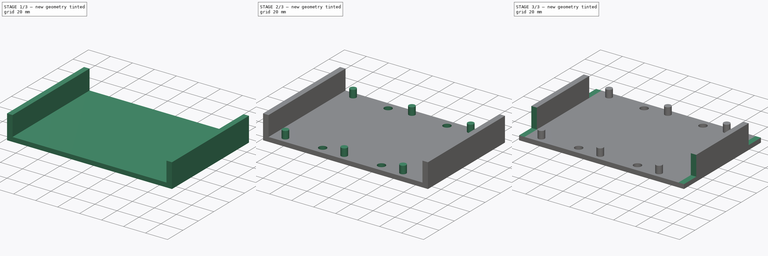
[diagram: build sequence overview — one tinted view per stage of 3, left to right]
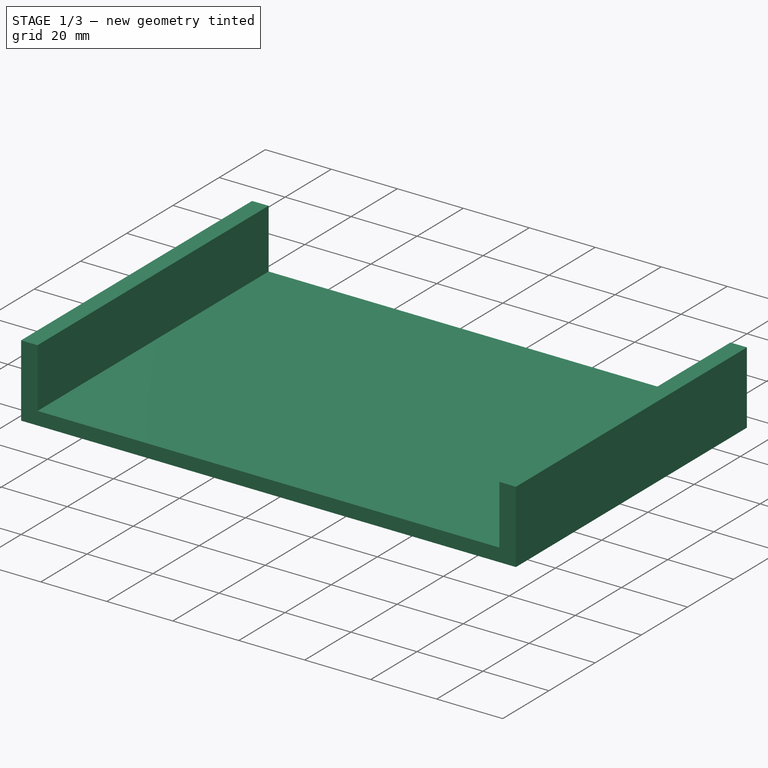
[diagram: stage 1 of 3 — iso view after this stage's code; geometry added in this stage tinted green]
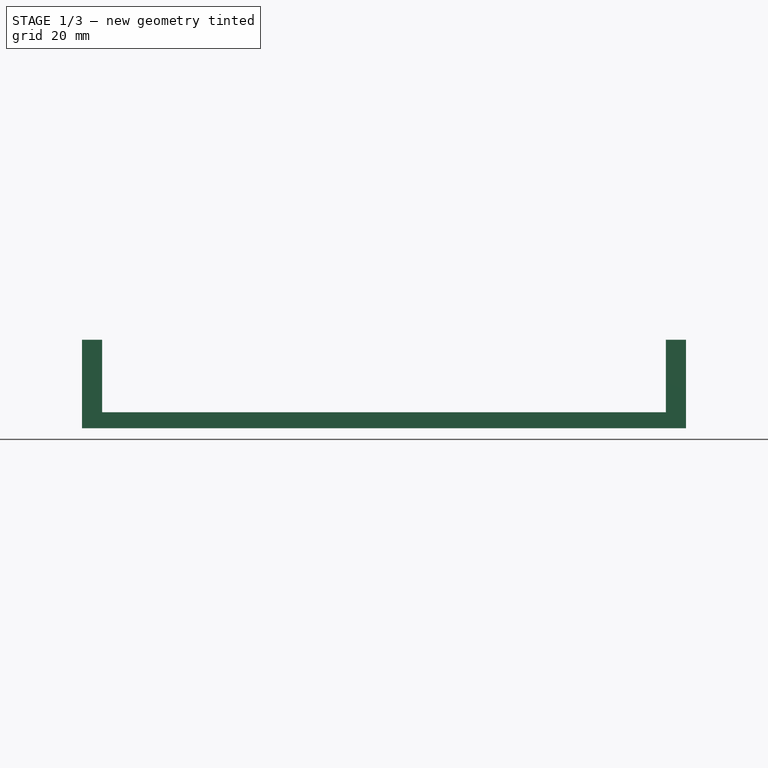
[diagram: stage 1 of 3 — front view after this stage's code; geometry added in this stage tinted green]
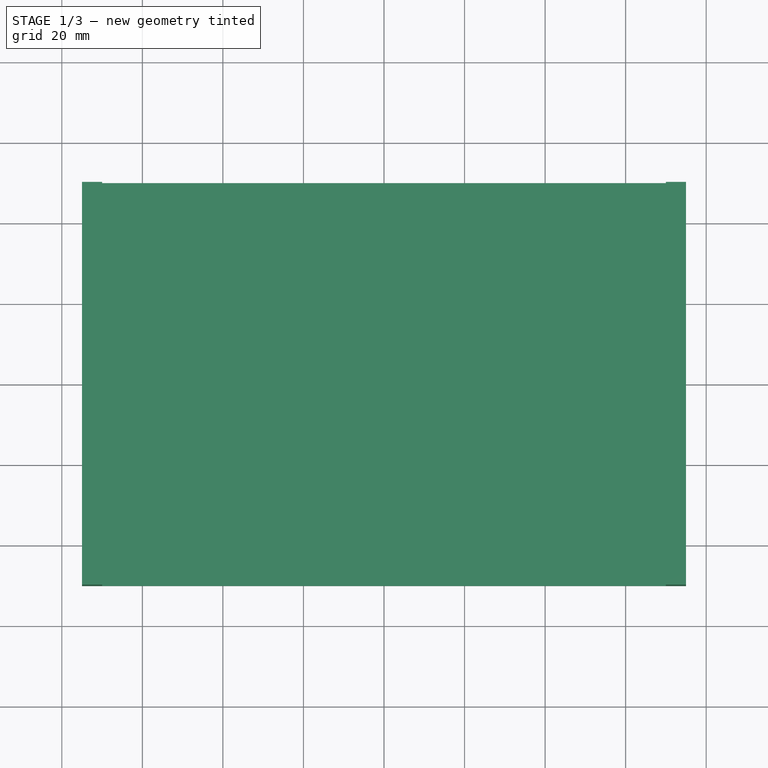
[diagram: stage 1 of 3 — top view after this stage's code; geometry added in this stage tinted green]
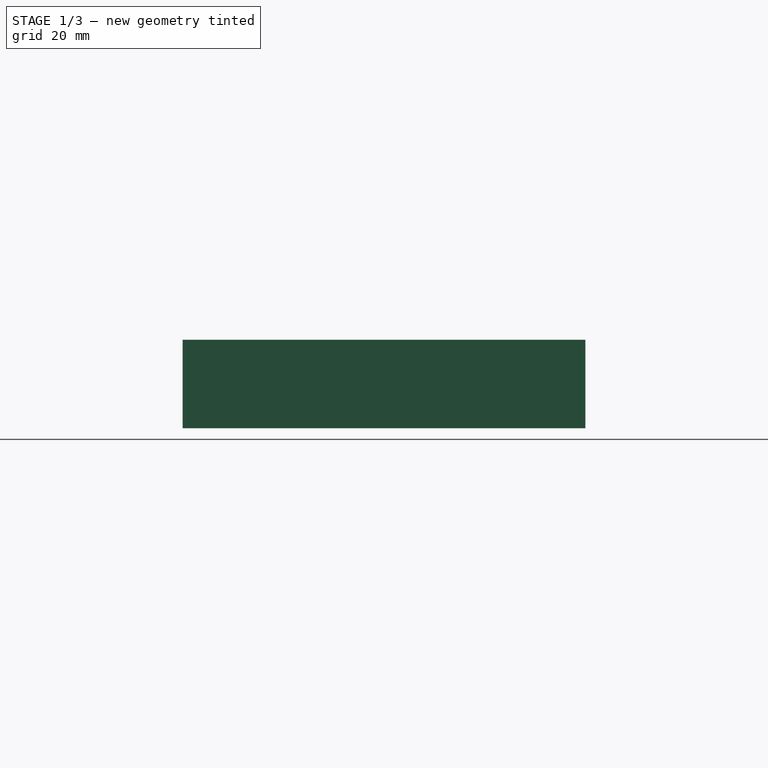
[diagram: stage 1 of 3 — right view after this stage's code; geometry added in this stage tinted green]
FCSTD DOCUMENT  (FreeCAD 0.21R33668 +26 (Git))
Label: abajo
License: All rights reserved
LicenseURL: https://en.wikipedia.org/wiki/All_rights_reserved
objects: Sketcher::SketchObject×6, PartDesign::Pad×3, PartDesign::Pocket×3, PartDesign::Body×1
note: 19 computed .brp shape members not serialized (recipe doc carries the construction recipe); baked Part::Feature solids carry a one-line shape summary decoded from their .brp

FEATURE [Sketcher::SketchObject] Sketch
  FullyConstrained = true
  MapMode = 5
  Support = -> [XY_Plane]
  sketch-geometry (4):
    g0: LineSegment StartX=-75 StartY=50 StartZ=0 EndX=75 EndY=50 EndZ=0
    g1: LineSegment StartX=75 StartY=50 StartZ=0 EndX=75 EndY=-50 EndZ=0
    g2: LineSegment StartX=75 StartY=-50 StartZ=0 EndX=-75 EndY=-50 EndZ=0
    g3: LineSegment StartX=-75 StartY=-50 StartZ=0 EndX=-75 EndY=50 EndZ=0
  constraints (12):
    c: Coincident(g0,g1)
    c: Coincident(g1,g2)
    c: Coincident(g2,g3)
    c: Coincident(g3,g0)
    c: Horizontal(g0)
    c: Horizontal(g2)
    c: Vertical(g1)
    c: Vertical(g3)
    c: DistanceY(g3,g3) = 100
    c: DistanceY(g-1,g0) = 50
    c: DistanceX(g0,g0) = 150
    c: DistanceX(g0,g-1) = 75
FEATURE [PartDesign::Pad] Pad
  Direction = (0,0,1)
  Length = 4
  Length2 = 10
  Profile = -> Sketch
  ReferenceAxis = -> Sketch [N_Axis]
  Type = 0
FEATURE [Sketcher::SketchObject] Sketch005
  ExternalGeometry = -> [Pad]
  FullyConstrained = true
  MapMode = 5
  Placement = pos=(0,0,4) rot=(0,0,1;0rad)
  sketch-geometry (8):
    g0: LineSegment StartX=-75 StartY=50 StartZ=0 EndX=-70 EndY=50 EndZ=0
    g1: LineSegment StartX=-70 StartY=50 StartZ=0 EndX=-70 EndY=-50 EndZ=0
    g2: LineSegment StartX=-70 StartY=-50 StartZ=0 EndX=-75 EndY=-50 EndZ=0
    g3: LineSegment StartX=-75 StartY=-50 StartZ=0 EndX=-75 EndY=50 EndZ=0
    g4: LineSegment StartX=75 StartY=50 StartZ=0 EndX=70 EndY=50 EndZ=0
    g5: LineSegment StartX=70 StartY=50 StartZ=0 EndX=70 EndY=-50 EndZ=0
    g6: LineSegment StartX=70 StartY=-50 StartZ=0 EndX=75 EndY=-50 EndZ=0
    g7: LineSegment StartX=75 StartY=-50 StartZ=0 EndX=75 EndY=50 EndZ=0
  constraints (22):
    c: Coincident(g0,g1)
    c: Coincident(g1,g2)
    c: Coincident(g2,g3)
    c: Coincident(g3,g0)
    c: Horizontal(g0)
    c: Horizontal(g2)
    c: Vertical(g1)
    c: Vertical(g3)
    c: Coincident(g0,g-4)
    c: PointOnObject(g1,g-5)
    c: Coincident(g4,g5)
    c: Coincident(g5,g6)
    c: Coincident(g6,g7)
    c: Coincident(g7,g4)
    c: Horizontal(g4)
    c: Horizontal(g6)
    c: Vertical(g5)
    c: Vertical(g7)
    c: Coincident(g4,g-6)
    c: PointOnObject(g5,g-5)
    c: DistanceX(g2,g2) = 5
    c: DistanceX(g6,g6) = 5
FEATURE [PartDesign::Pad] Pad001
  BaseFeature = -> Pad
  Direction = (0,0,1)
  Length = 18
  Length2 = 10
  Profile = -> Sketch005
  ReferenceAxis = -> Sketch005 [N_Axis]
  Type = 0
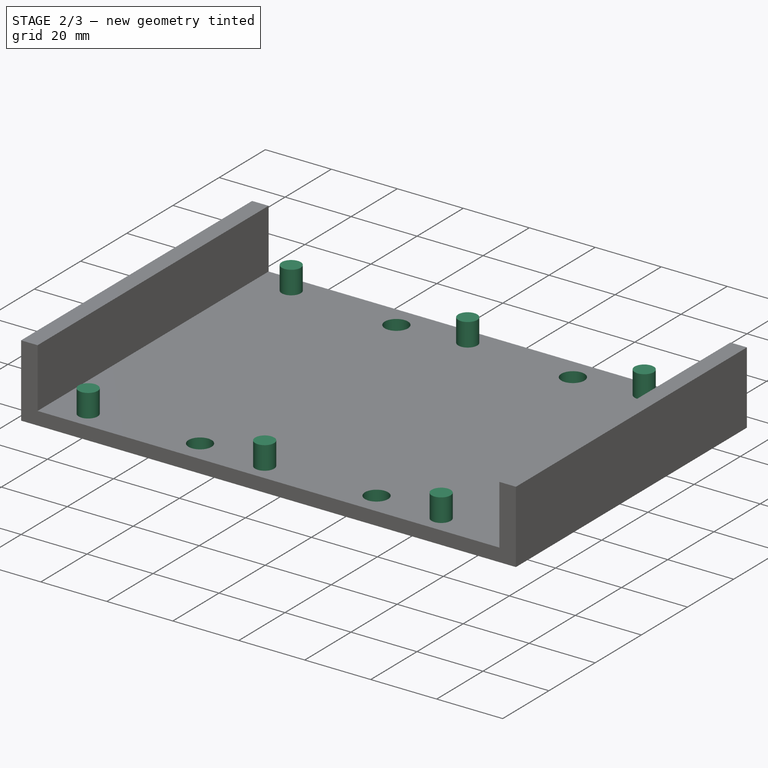
[diagram: stage 2 of 3 — iso view after this stage's code; geometry added in this stage tinted green]
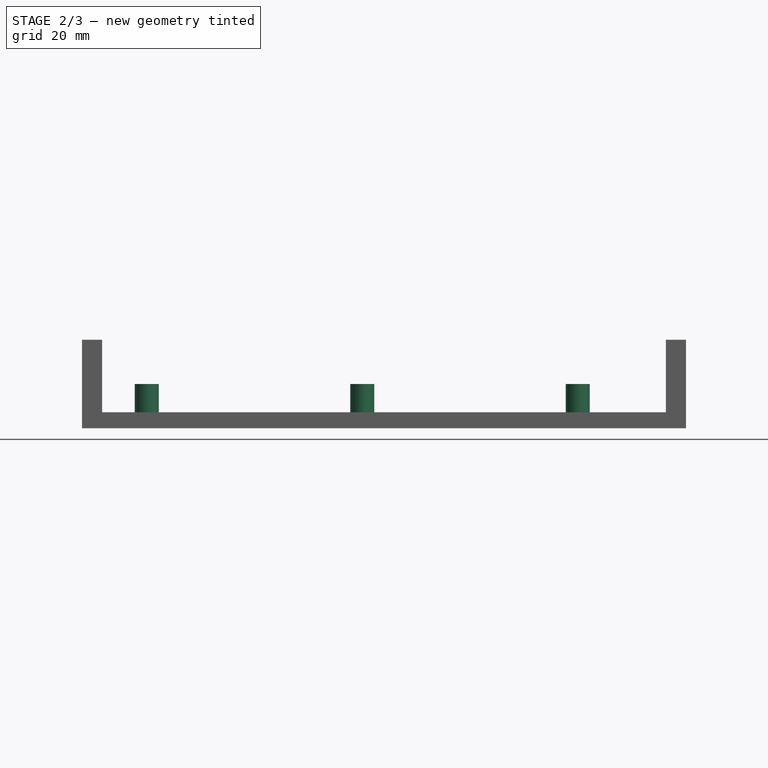
[diagram: stage 2 of 3 — front view after this stage's code; geometry added in this stage tinted green]
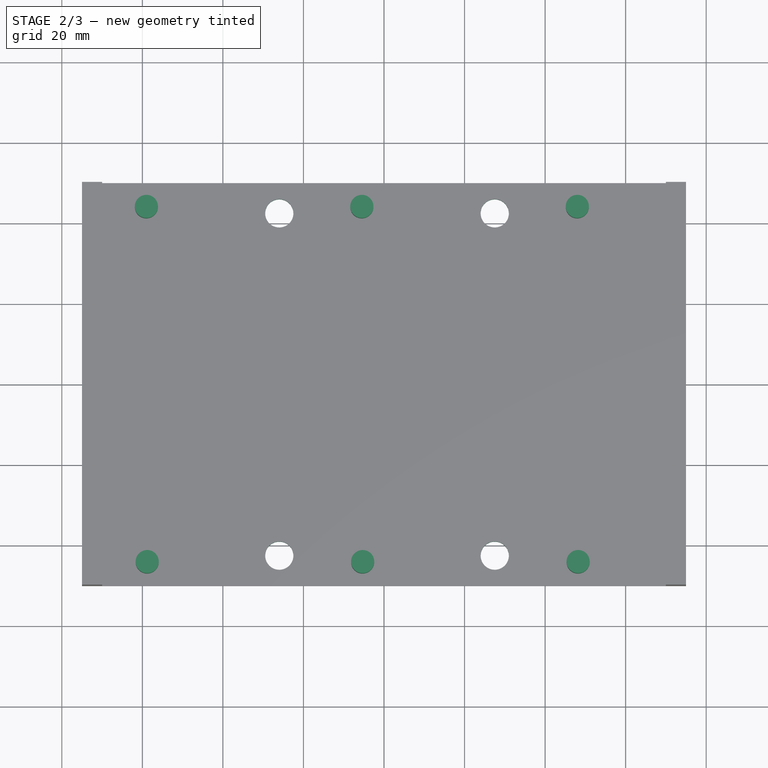
[diagram: stage 2 of 3 — top view after this stage's code; geometry added in this stage tinted green]
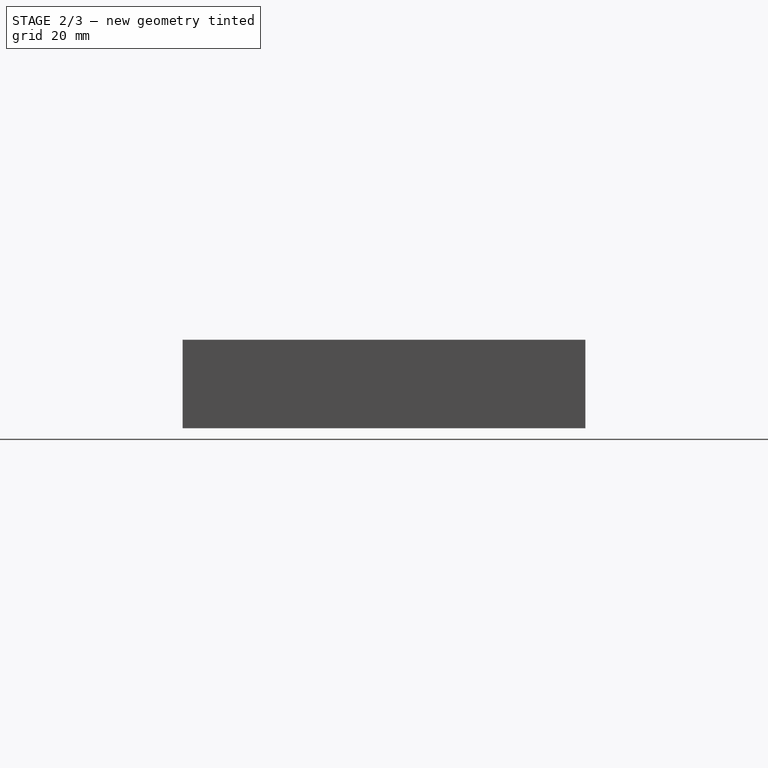
[diagram: stage 2 of 3 — right view after this stage's code; geometry added in this stage tinted green]
FEATURE [Sketcher::SketchObject] Sketch006
  ExternalGeometry = -> [Pad001]
  FullyConstrained = true
  MapMode = 5
  Placement = pos=(0,0,4) rot=(0,0,1;0rad)
  Support = -> [Pad001]
  sketch-geometry (6):
    g0: Circle CenterX=-59 CenterY=44.1 CenterZ=0 NormalX=0 NormalY=0 NormalZ=1 AngleXU=0 Radius=2.875
    g1: Circle CenterX=-5.5 CenterY=44.1 CenterZ=0 NormalX=0 NormalY=0 NormalZ=1 AngleXU=0 Radius=2.875
    g2: Circle CenterX=48 CenterY=44.1 CenterZ=0 NormalX=0 NormalY=0 NormalZ=1 AngleXU=0 Radius=2.875
    g3: Circle CenterX=48.2 CenterY=-44.1 CenterZ=0 NormalX=0 NormalY=0 NormalZ=1 AngleXU=0 Radius=2.875
    g4: Circle CenterX=-5.3 CenterY=-44.1 CenterZ=0 NormalX=0 NormalY=0 NormalZ=1 AngleXU=0 Radius=2.875
    g5: Circle CenterX=-58.8 CenterY=-44.1 CenterZ=0 NormalX=0 NormalY=0 NormalZ=1 AngleXU=0 Radius=2.875
  constraints (18):
    c: Diameter(g0) = 5.75
    c: Diameter(g1) = 5.75
    c: Diameter(g2) = 5.75
    c: Diameter(g3) = 5.75
    c: Diameter(g4) = 5.75
    c: Diameter(g5) = 5.75
    c: DistanceY(g0,g-4) = 5.9
    c: DistanceY(g1,g0) = 0
    c: DistanceY(g2,g1) = 0
    c: DistanceY(g-5,g5) = 5.9
    c: DistanceY(g5,g4) = 0
    c: DistanceY(g4,g3) = 0
    c: DistanceX(g-5,g5) = 11.2
    c: DistanceX(g5,g4) = 53.5
    c: DistanceX(g4,g3) = 53.5
    c: DistanceX(g-4,g0) = 11
    c: DistanceX(g0,g1) = 53.5
    c: DistanceX(g1,g2) = 53.5
FEATURE [Sketcher::SketchObject] Sketch007
  FullyConstrained = false
  MapMode = 5
  Placement = pos=(0,0,4) rot=(0,0,1;0rad)
  sketch-geometry (4):
    g0: Circle CenterX=-26 CenterY=42.5 CenterZ=0 NormalX=0 NormalY=0 NormalZ=1 AngleXU=0 Radius=3.5
    g1: Circle CenterX=27.5 CenterY=42.5 CenterZ=0 NormalX=0 NormalY=0 NormalZ=1 AngleXU=0 Radius=3.5
    g2: Circle CenterX=27.5 CenterY=-42.5 CenterZ=0 NormalX=0 NormalY=0 NormalZ=1 AngleXU=0 Radius=3.5
    g3: Circle CenterX=-26 CenterY=-42.5 CenterZ=0 NormalX=0 NormalY=0 NormalZ=1 AngleXU=0 Radius=3.5
  constraints (6):
    c: Diameter(g0) = 7
    c: Diameter(g1) = 7
    c: Diameter(g2) = 7
    c: Diameter(g3) = 7
    c: DistanceY(g1,g0) = 0
    c: DistanceY(g3,g2) = 0
FEATURE [PartDesign::Pocket] Pocket001
  BaseFeature = -> Pad001
  Direction = (0,0,-1)
  Length = 5
  Length2 = 5
  Profile = -> Sketch007
  ReferenceAxis = -> Sketch007 [N_Axis]
  Type = 0
FEATURE [PartDesign::Pad] Pad002
  BaseFeature = -> Pocket001
  Direction = (0,0,1)
  Length = 7
  Length2 = 10
  Profile = -> Sketch006
  ReferenceAxis = -> Sketch006 [N_Axis]
  Type = 0
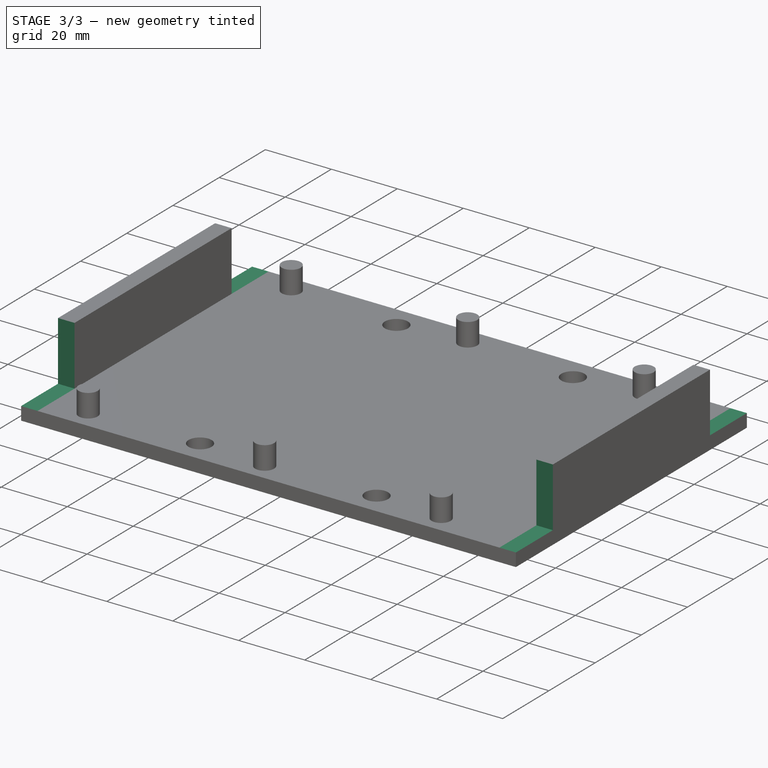
[diagram: stage 3 of 3 — iso view after this stage's code; geometry added in this stage tinted green]
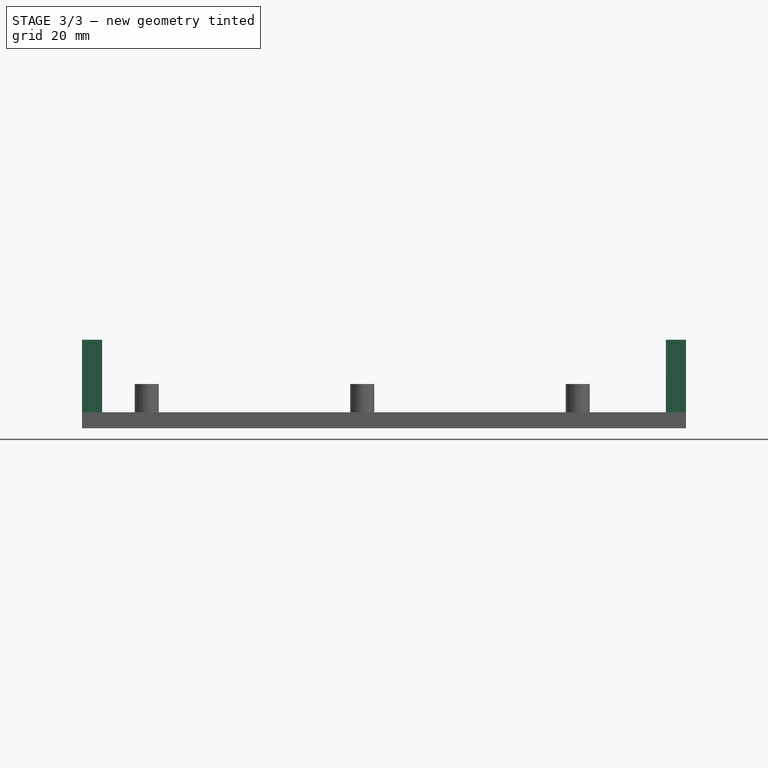
[diagram: stage 3 of 3 — front view after this stage's code; geometry added in this stage tinted green]
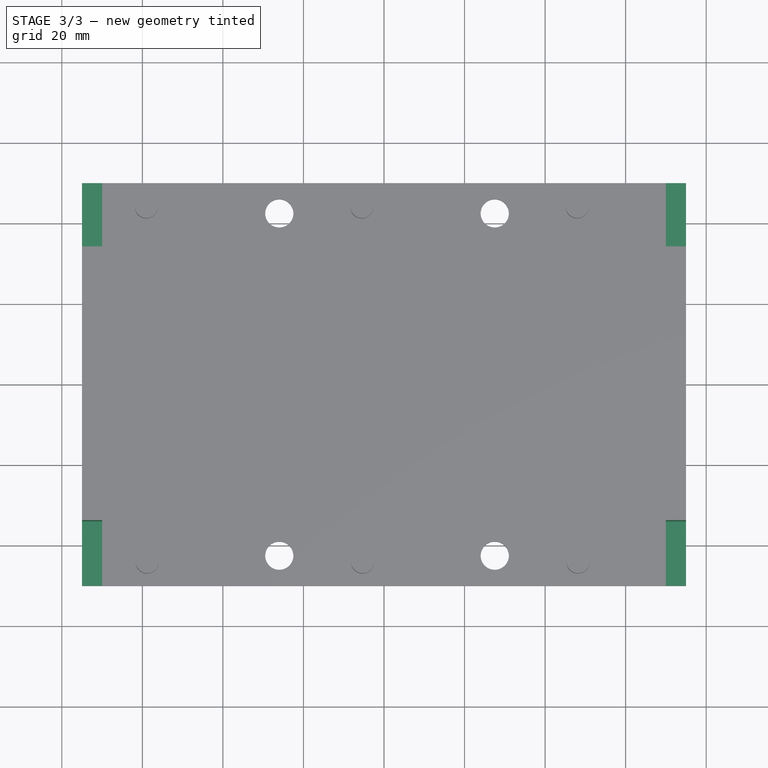
[diagram: stage 3 of 3 — top view after this stage's code; geometry added in this stage tinted green]
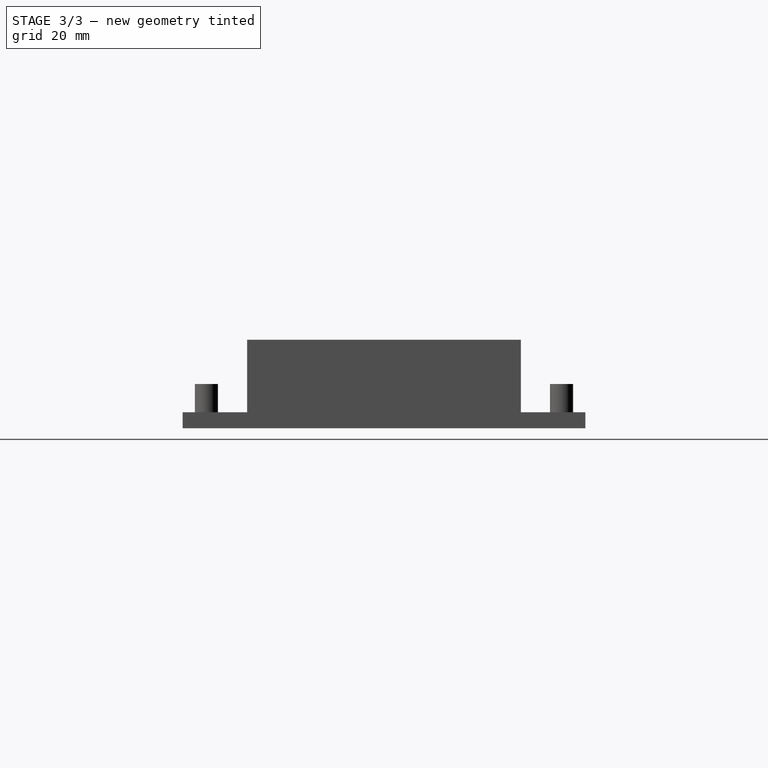
[diagram: stage 3 of 3 — right view after this stage's code; geometry added in this stage tinted green]
FEATURE [Sketcher::SketchObject] Sketch008
  ExternalGeometry = -> [Pad002]
  FullyConstrained = true
  MapMode = 5
  Placement = pos=(-75,0,0) rot=(0.57735,-0.57735,-0.57735;2.0944rad)
  Support = -> [Pad002]
  sketch-geometry (8):
    g0: LineSegment StartX=-50 StartY=22 StartZ=0 EndX=-34 EndY=22 EndZ=0
    g1: LineSegment StartX=-34 StartY=22 StartZ=0 EndX=-34 EndY=4 EndZ=0
    g2: LineSegment StartX=-34 StartY=4 StartZ=0 EndX=-50 EndY=4 EndZ=0
    g3: LineSegment StartX=-50 StartY=4 StartZ=0 EndX=-50 EndY=22 EndZ=0
    g4: LineSegment StartX=50 StartY=22 StartZ=0 EndX=34 EndY=22 EndZ=0
    g5: LineSegment StartX=34 StartY=22 StartZ=0 EndX=34 EndY=4 EndZ=0
    g6: LineSegment StartX=34 StartY=4 StartZ=0 EndX=50 EndY=4 EndZ=0
    g7: LineSegment StartX=50 StartY=4 StartZ=0 EndX=50 EndY=22 EndZ=0
  constraints (22):
    c: Coincident(g0,g1)
    c: Coincident(g1,g2)
    c: Coincident(g2,g3)
    c: Coincident(g3,g0)
    c: Horizontal(g0)
    c: Horizontal(g2)
    c: Vertical(g1)
    c: Vertical(g3)
    c: Coincident(g0,g-4)
    c: PointOnObject(g1,g-5)
    c: Coincident(g4,g5)
    c: Coincident(g5,g6)
    c: Coincident(g6,g7)
    c: Coincident(g7,g4)
    c: Horizontal(g4)
    c: Horizontal(g6)
    c: Vertical(g5)
    c: Vertical(g7)
    c: Coincident(g4,g-6)
    c: PointOnObject(g5,g-5)
    c: DistanceX(g4,g4) = 16
    c: DistanceX(g0,g0) = 16
FEATURE [PartDesign::Pocket] Pocket
  BaseFeature = -> Pad002
  Direction = (1,0,0)
  Length = 5
  Length2 = 5
  Profile = -> Sketch008
  ReferenceAxis = -> Sketch008 [N_Axis]
  Type = 0
FEATURE [Sketcher::SketchObject] Sketch009
  ExternalGeometry = -> [Pocket]
  FullyConstrained = true
  MapMode = 5
  Placement = pos=(75,0,0) rot=(0.57735,0.57735,0.57735;2.0944rad)
  Support = -> [Pocket]
  sketch-geometry (8):
    g0: LineSegment StartX=50 StartY=22 StartZ=0 EndX=34 EndY=22 EndZ=0
    g1: LineSegment StartX=34 StartY=22 StartZ=0 EndX=34 EndY=4 EndZ=0
    g2: LineSegment StartX=34 StartY=4 StartZ=0 EndX=50 EndY=4 EndZ=0
    g3: LineSegment StartX=50 StartY=4 StartZ=0 EndX=50 EndY=22 EndZ=0
    g4: LineSegment StartX=-50 StartY=22 StartZ=0 EndX=-34 EndY=22 EndZ=0
    g5: LineSegment StartX=-34 StartY=22 StartZ=0 EndX=-34 EndY=4 EndZ=0
    g6: LineSegment StartX=-34 StartY=4 StartZ=0 EndX=-50 EndY=4 EndZ=0
    g7: LineSegment StartX=-50 StartY=4 StartZ=0 EndX=-50 EndY=22 EndZ=0
  constraints (22):
    c: Coincident(g0,g1)
    c: Coincident(g1,g2)
    c: Coincident(g2,g3)
    c: Coincident(g3,g0)
    c: Horizontal(g0)
    c: Horizontal(g2)
    c: Vertical(g1)
    c: Vertical(g3)
    c: Coincident(g0,g-6)
    c: PointOnObject(g1,g-5)
    c: Coincident(g4,g5)
    c: Coincident(g5,g6)
    c: Coincident(g6,g7)
    c: Coincident(g7,g4)
    c: Horizontal(g4)
    c: Horizontal(g6)
    c: Vertical(g5)
    c: Vertical(g7)
    c: Coincident(g4,g-4)
    c: PointOnObject(g5,g-5)
    c: DistanceX(g4,g4) = 16
    c: DistanceX(g0,g0) = 16
FEATURE [PartDesign::Pocket] Pocket002
  BaseFeature = -> Pocket
  Direction = (-1,0,0)
  Length = 5
  Length2 = 5
  Profile = -> Sketch009
  ReferenceAxis = -> Sketch009 [N_Axis]
  Type = 0
FEATURE [PartDesign::Body] Body
  Group = -> [Sketch,Pad,Sketch005,Pad001,Sketch006,Sketch007,Pocket001,Pad002,Sketch008,Pocket,Sketch009,Pocket002]
  Origin = -> Origin
  Tip = -> Pocket002
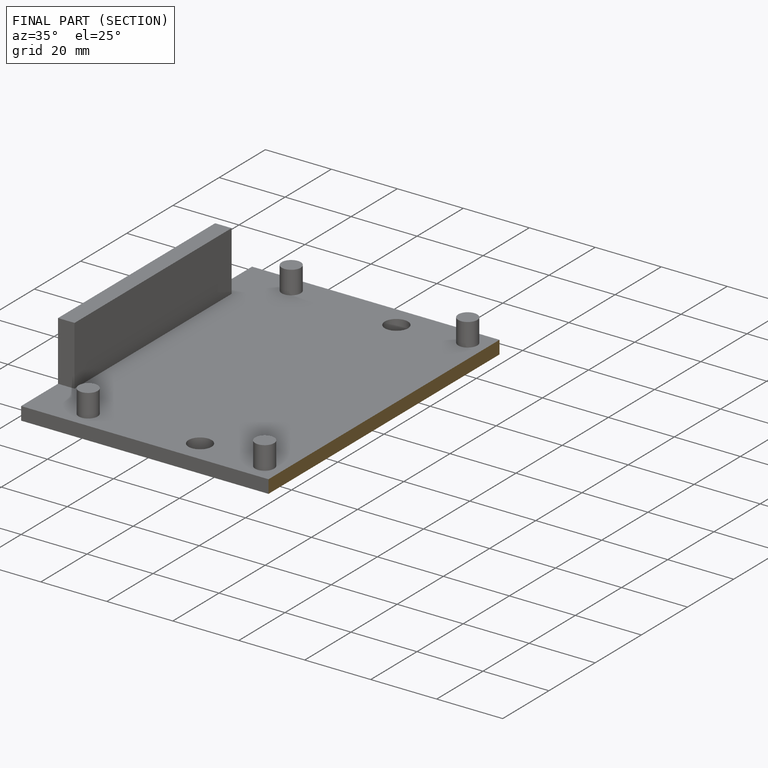
[diagram: finished part — half-section view (interior)]
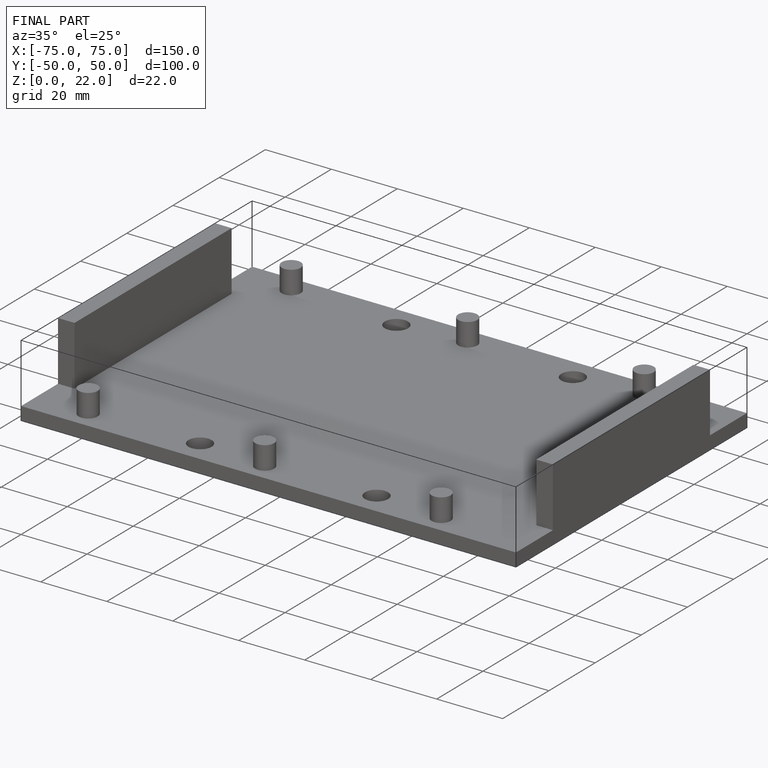
[diagram: finished part — iso view with bounding-box wireframe]
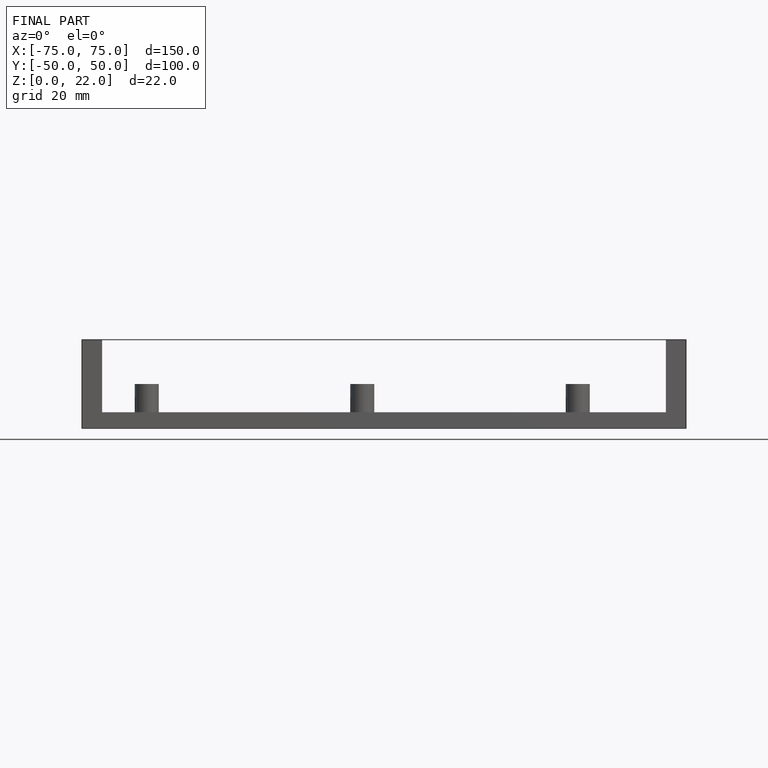
[diagram: finished part — front view with bounding-box wireframe]
